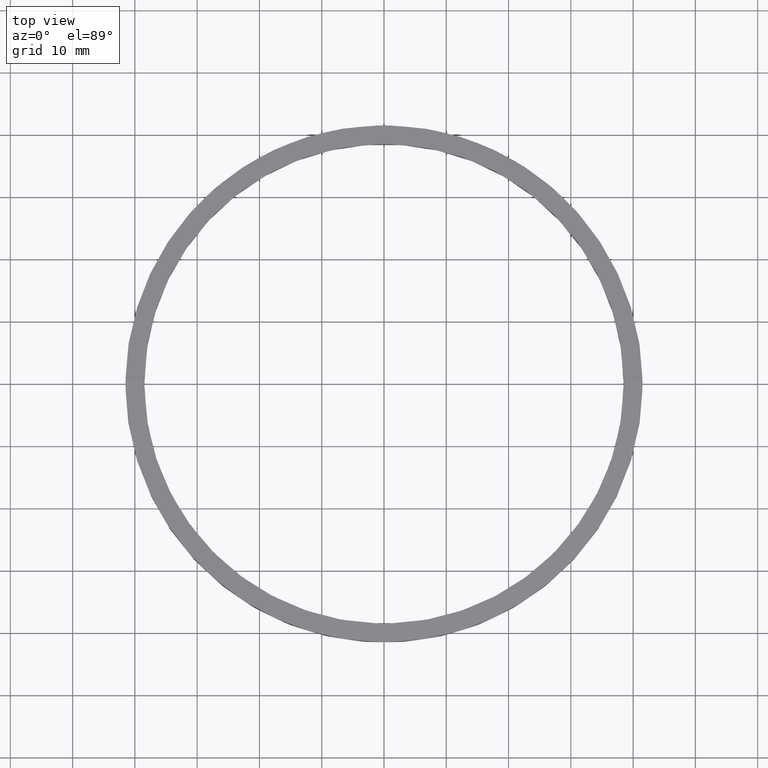
[diagram: clean part render]
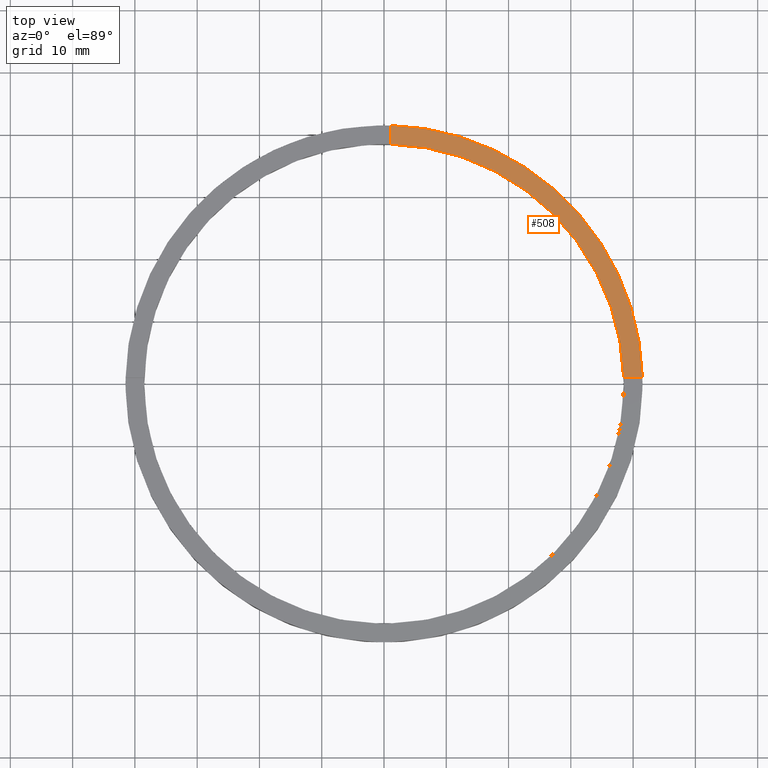
[diagram: same view with one face highlighted and labeled with its STEP entity id]
A machine part, top view. The second image highlights one B-rep face of the part: STEP entity #508.
In plain terms, the highlighted planar face has unit normal (0, 0, 1).
Its self-contained STEP definition (entity closure, byte-faithful):
#16 = EDGE_CURVE ( 'NONE', #352, #464, #205, .T. ) ;
#26 = CARTESIAN_POINT ( 'NONE',  ( 0.000000000000000000, 0.000000000000000000, 4.000000000000000000 ) ) ;
#30 = DIRECTION ( 'NONE',  ( 1.000000000000000000, 0.000000000000000000, -0.000000000000000000 ) ) ;
#35 = PLANE ( 'NONE',  #343 ) ;
#53 = VECTOR ( 'NONE', #656, 1000.000000000000000 ) ;
#88 = DIRECTION ( 'NONE',  ( 0.000000000000000000, 0.000000000000000000, 1.000000000000000000 ) ) ;
#101 = DIRECTION ( 'NONE',  ( 1.000000000000000000, 0.000000000000000000, 0.000000000000000000 ) ) ;
#117 = VERTEX_POINT ( 'NONE', #647 ) ;
#138 = EDGE_CURVE ( 'NONE', #461, #117, #702, .T. ) ;
#169 = ORIENTED_EDGE ( 'NONE', *, *, #532, .F. ) ;
#174 = AXIS2_PLACEMENT_3D ( 'NONE', #264, #307, #101 ) ;
#204 = EDGE_LOOP ( 'NONE', ( #169, #379, #709, #373 ) ) ;
#205 = CIRCLE ( 'NONE', #174, 41.50000000000000000 ) ;
#253 = DIRECTION ( 'NONE',  ( 1.000000000000000000, 0.000000000000000000, 0.000000000000000000 ) ) ;
#264 = CARTESIAN_POINT ( 'NONE',  ( 0.000000000000000000, 0.000000000000000000, 4.000000000000000000 ) ) ;
#307 = DIRECTION ( 'NONE',  ( 0.000000000000000000, 0.000000000000000000, 1.000000000000000000 ) ) ;
#311 = DIRECTION ( 'NONE',  ( -1.000000000000000000, -6.505213034913025371E-17, -0.000000000000000000 ) ) ;
#313 = AXIS2_PLACEMENT_3D ( 'NONE', #26, #353, #253 ) ;
#318 = VECTOR ( 'NONE', #311, 1000.000000000000000 ) ;
#327 = CARTESIAN_POINT ( 'NONE',  ( 0.9999999999999742428, 31.50000000000000000, 4.000000000000000000 ) ) ;
#331 = LINE ( 'NONE', #327, #53 ) ;
#343 = AXIS2_PLACEMENT_3D ( 'NONE', #778, #88, #30 ) ;
#350 = CARTESIAN_POINT ( 'NONE',  ( 38.48701079585163853, 0.9999999999998432365, 4.000000000000000000 ) ) ;
#352 = VERTEX_POINT ( 'NONE', #514 ) ;
#353 = DIRECTION ( 'NONE',  ( 0.000000000000000000, 0.000000000000000000, 1.000000000000000000 ) ) ;
#373 = ORIENTED_EDGE ( 'NONE', *, *, #16, .T. ) ;
#379 = ORIENTED_EDGE ( 'NONE', *, *, #138, .F. ) ;
#461 = VERTEX_POINT ( 'NONE', #350 ) ;
#464 = VERTEX_POINT ( 'NONE', #528 ) ;
#508 = ADVANCED_FACE ( 'NONE', ( #574 ), #35, .T. ) ;
#514 = CARTESIAN_POINT ( 'NONE',  ( 41.48795005781800427, 0.9999999999998432365, 4.000000000000000000 ) ) ;
#528 = CARTESIAN_POINT ( 'NONE',  ( 0.9999999999999742428, 41.48795005781799716, 4.000000000000000000 ) ) ;
#532 = EDGE_CURVE ( 'NONE', #117, #464, #331, .T. ) ;
#533 = CARTESIAN_POINT ( 'NONE',  ( 31.49999999999999289, 0.9999999999998425704, 4.000000000000000000 ) ) ;
#573 = LINE ( 'NONE', #533, #318 ) ;
#574 = FACE_OUTER_BOUND ( 'NONE', #204, .T. ) ;
#647 = CARTESIAN_POINT ( 'NONE',  ( 0.9999999999999742428, 38.48701079585163143, 4.000000000000000000 ) ) ;
#656 = DIRECTION ( 'NONE',  ( 0.000000000000000000, 1.000000000000000000, 0.000000000000000000 ) ) ;
#678 = EDGE_CURVE ( 'NONE', #352, #461, #573, .T. ) ;
#702 = CIRCLE ( 'NONE', #313, 38.50000000000000000 ) ;
#709 = ORIENTED_EDGE ( 'NONE', *, *, #678, .F. ) ;
#778 = CARTESIAN_POINT ( 'NONE',  ( 0.000000000000000000, 0.000000000000000000, 4.000000000000000000 ) ) ;